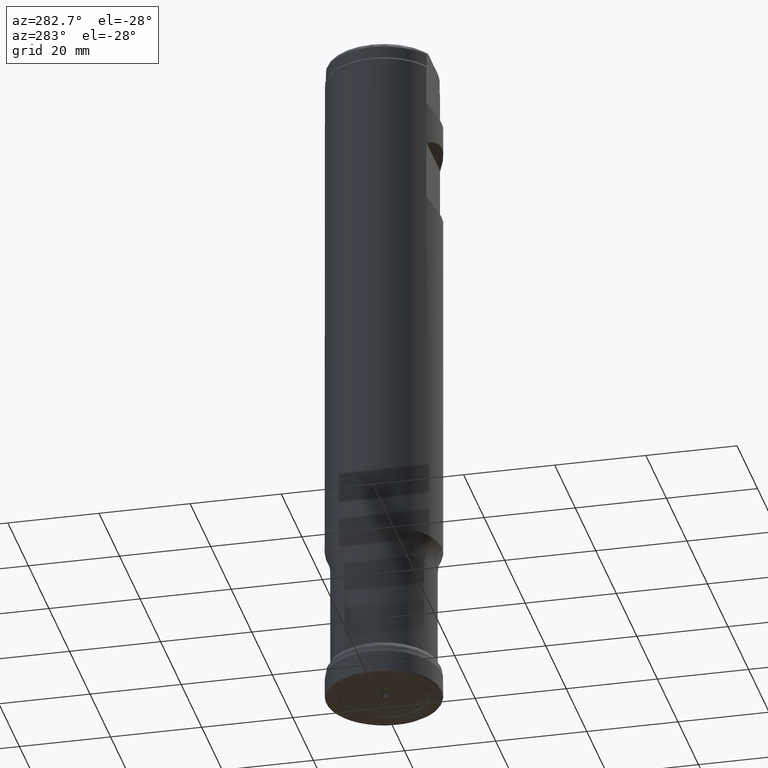
[diagram: clean part render]
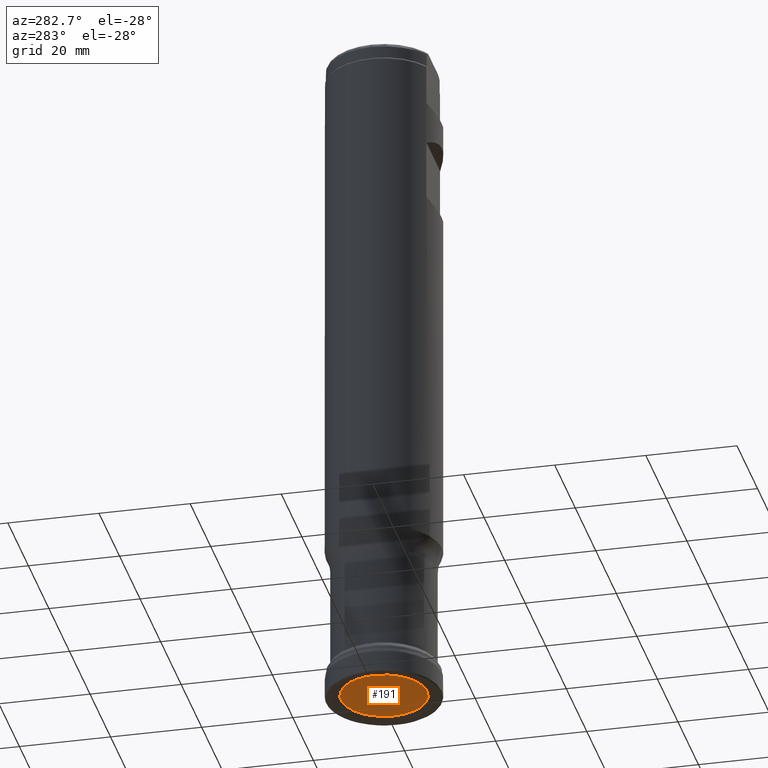
[diagram: same view with one face highlighted and labeled with its STEP entity id]
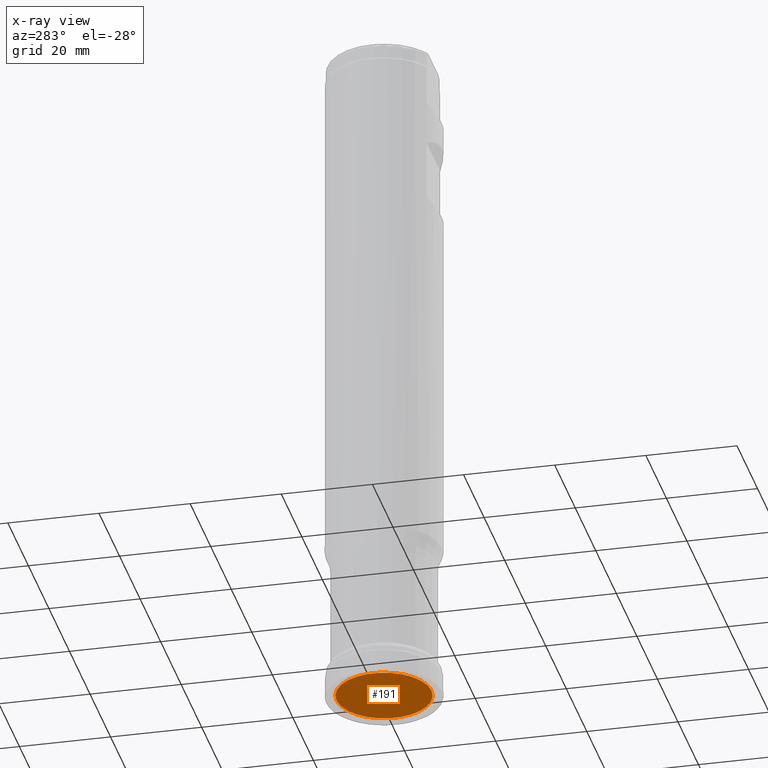
[diagram: x-ray of the same camera — body ghosted, the highlighted face saturated]
A machine part, auxiliary view. The second image highlights one B-rep face of the part: STEP entity #191.
The next image is the same camera in x-ray: the body ghosted, the highlighted face saturated — about 0% of this face is hidden behind the body in this view.
In plain terms, the highlighted planar face has unit normal (0, -0, -1).
Its self-contained STEP definition (entity closure, byte-faithful):
#191=ADVANCED_FACE('',(#289,#290),#242,.T.);
#242=PLANE('',#816);
#289=FACE_BOUND('',#370,.T.);
#290=FACE_BOUND('',#371,.T.);
#370=EDGE_LOOP('',(#461));
#371=EDGE_LOOP('',(#462));
#461=ORIENTED_EDGE('',*,*,#657,.T.);
#462=ORIENTED_EDGE('',*,*,#658,.T.);
#597=VERTEX_POINT('',#1292);
#598=VERTEX_POINT('',#1294);
#657=EDGE_CURVE('',#597,#597,#724,.T.);
#658=EDGE_CURVE('',#598,#598,#725,.T.);
#724=CIRCLE('',#814,1.);
#725=CIRCLE('',#815,10.4254870775541);
#814=AXIS2_PLACEMENT_3D('',#1291,#895,#896);
#815=AXIS2_PLACEMENT_3D('',#1293,#897,#898);
#816=AXIS2_PLACEMENT_3D('',#1295,#899,#900);
#895=DIRECTION('',(0.,1.17145536458252E-15,1.));
#896=DIRECTION('',(0.,-1.,1.19262238973405E-15));
#897=DIRECTION('',(0.,-1.17145536458252E-15,-1.));
#898=DIRECTION('',(0.,1.,-1.17514744950991E-15));
#899=DIRECTION('',(0.,-1.17145536458252E-15,-1.));
#900=DIRECTION('',(0.,1.,-1.17148044737059E-15));
#1291=CARTESIAN_POINT('',(0.,7.61445986978644E-16,0.650000000000003));
#1292=CARTESIAN_POINT('',(0.,-0.999999999999999,0.650000000000004));
#1293=CARTESIAN_POINT('',(0.,7.61445986978645E-16,0.650000000000004));
#1294=CARTESIAN_POINT('',(0.,10.4254870775541,0.649999999999991));
#1295=CARTESIAN_POINT('',(10.6855397017343,7.61445986978645E-16,0.650000000000004));